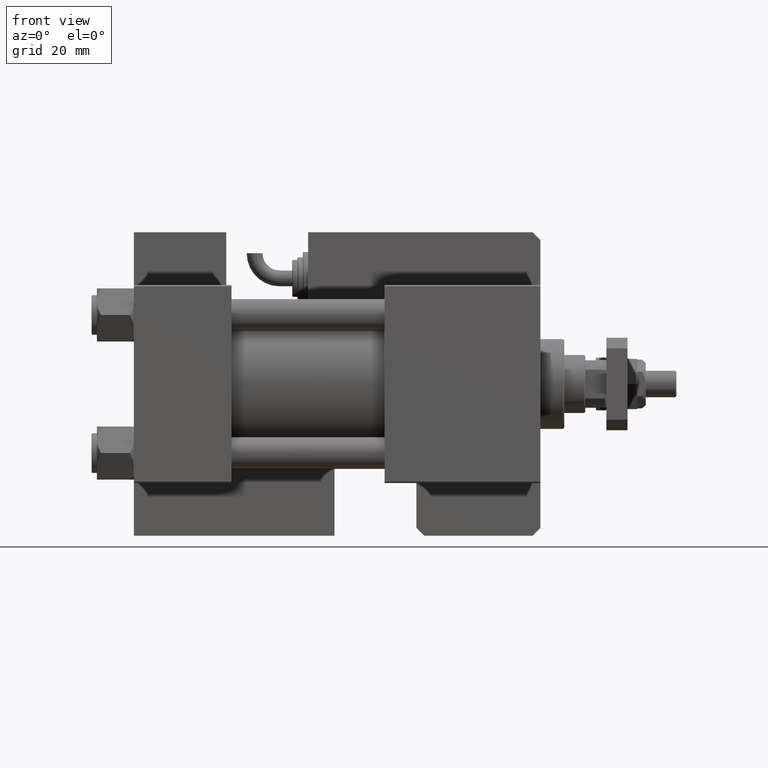
[diagram: clean part render]
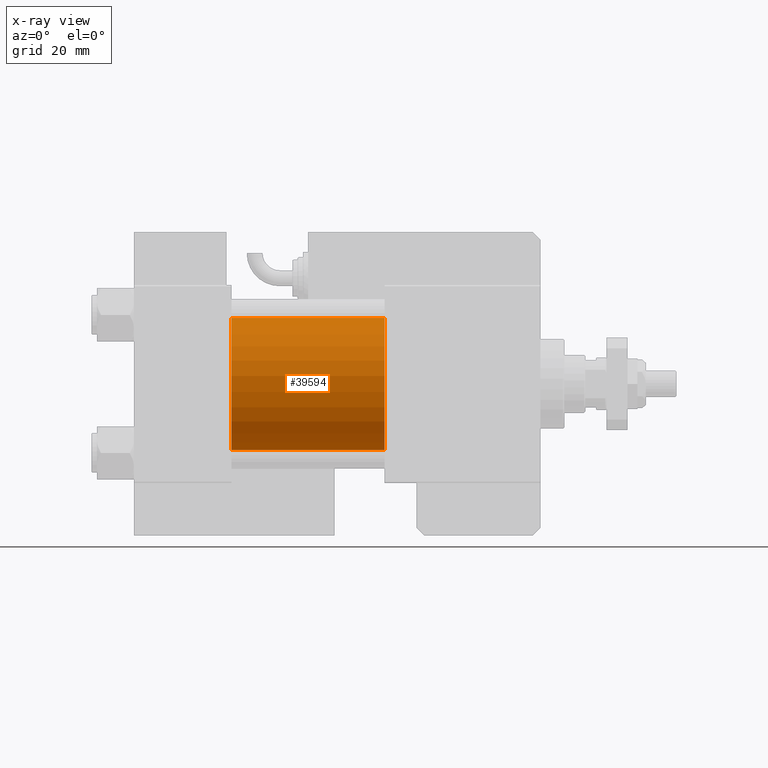
[diagram: x-ray — body ghosted, one internal face saturated and labeled with its STEP entity id]
A machine part, front view, then the same camera in x-ray: the body is ghosted and one INTERNAL B-rep face — a face not visible from any outside direction — is saturated and labeled: STEP entity #39594.
In plain terms, the highlighted cylindrical surface (partial cylindrical patch) has radius 25 mm, axis along (-1, -0, -0).
Its self-contained STEP definition (entity closure, byte-faithful):
#405 = LINE ( 'NONE', #34666, #51970 ) ;
#956 = VERTEX_POINT ( 'NONE', #7224 ) ;
#1079 = CARTESIAN_POINT ( 'NONE',  ( 95.00000000000000000, -2.602085213965210642E-15, 0.000000000000000000 ) ) ;
#1145 = EDGE_CURVE ( 'NONE', #17822, #956, #34014, .T. ) ;
#3466 = ORIENTED_EDGE ( 'NONE', *, *, #27318, .F. ) ;
#4159 = DIRECTION ( 'NONE',  ( 0.000000000000000000, 0.000000000000000000, 1.000000000000000000 ) ) ;
#7224 = CARTESIAN_POINT ( 'NONE',  ( 37.00000000000000000, 4.595317839031718093E-16, -25.00000000000000000 ) ) ;
#9303 = DIRECTION ( 'NONE',  ( 1.000000000000000000, 0.000000000000000000, 0.000000000000000000 ) ) ;
#9680 = ORIENTED_EDGE ( 'NONE', *, *, #49659, .T. ) ;
#13114 = DIRECTION ( 'NONE',  ( 0.000000000000000000, 0.000000000000000000, -1.000000000000000000 ) ) ;
#13660 = CARTESIAN_POINT ( 'NONE',  ( 95.00000000000000000, 4.595317839031718093E-16, -25.00000000000000000 ) ) ;
#17266 = ORIENTED_EDGE ( 'NONE', *, *, #1145, .F. ) ;
#17822 = VERTEX_POINT ( 'NONE', #34171 ) ;
#21136 = AXIS2_PLACEMENT_3D ( 'NONE', #46305, #55606, #4159 ) ;
#21384 = AXIS2_PLACEMENT_3D ( 'NONE', #47594, #51848, #13114 ) ;
#21904 = LINE ( 'NONE', #30668, #50869 ) ;
#27318 = EDGE_CURVE ( 'NONE', #32617, #17822, #21904, .T. ) ;
#30668 = CARTESIAN_POINT ( 'NONE',  ( 95.00000000000000000, -2.602085213965210642E-15, 25.00000000000000000 ) ) ;
#30944 = DIRECTION ( 'NONE',  ( -1.000000000000000000, -0.000000000000000000, -0.000000000000000000 ) ) ;
#32617 = VERTEX_POINT ( 'NONE', #36761 ) ;
#33232 = AXIS2_PLACEMENT_3D ( 'NONE', #1079, #9303, #35613 ) ;
#34014 = CIRCLE ( 'NONE', #21384, 25.00000000000000000 ) ;
#34171 = CARTESIAN_POINT ( 'NONE',  ( 37.00000000000000000, -2.602085213965210642E-15, 25.00000000000000000 ) ) ;
#34666 = CARTESIAN_POINT ( 'NONE',  ( 95.00000000000000000, 4.595317839031718093E-16, -25.00000000000000000 ) ) ;
#35613 = DIRECTION ( 'NONE',  ( 0.000000000000000000, 0.000000000000000000, -1.000000000000000000 ) ) ;
#36761 = CARTESIAN_POINT ( 'NONE',  ( 95.00000000000000000, -2.602085213965210642E-15, 25.00000000000000000 ) ) ;
#37650 = VERTEX_POINT ( 'NONE', #13660 ) ;
#38635 = CIRCLE ( 'NONE', #33232, 25.00000000000000000 ) ;
#39594 = ADVANCED_FACE ( 'NONE', ( #42892 ), #42626, .F. ) ;
#42626 = CYLINDRICAL_SURFACE ( 'NONE', #21136, 25.00000000000000000 ) ;
#42892 = FACE_OUTER_BOUND ( 'NONE', #52006, .T. ) ;
#43952 = DIRECTION ( 'NONE',  ( -1.000000000000000000, -0.000000000000000000, -0.000000000000000000 ) ) ;
#44706 = EDGE_CURVE ( 'NONE', #37650, #956, #405, .T. ) ;
#46305 = CARTESIAN_POINT ( 'NONE',  ( 95.00000000000000000, -2.602085213965210642E-15, 0.000000000000000000 ) ) ;
#47594 = CARTESIAN_POINT ( 'NONE',  ( 37.00000000000000000, -2.602085213965210642E-15, 0.000000000000000000 ) ) ;
#47988 = ORIENTED_EDGE ( 'NONE', *, *, #44706, .T. ) ;
#49659 = EDGE_CURVE ( 'NONE', #32617, #37650, #38635, .T. ) ;
#50869 = VECTOR ( 'NONE', #30944, 1000.000000000000000 ) ;
#51848 = DIRECTION ( 'NONE',  ( 1.000000000000000000, 0.000000000000000000, 0.000000000000000000 ) ) ;
#51970 = VECTOR ( 'NONE', #43952, 1000.000000000000000 ) ;
#52006 = EDGE_LOOP ( 'NONE', ( #9680, #47988, #17266, #3466 ) ) ;
#55606 = DIRECTION ( 'NONE',  ( -1.000000000000000000, -0.000000000000000000, -0.000000000000000000 ) ) ;